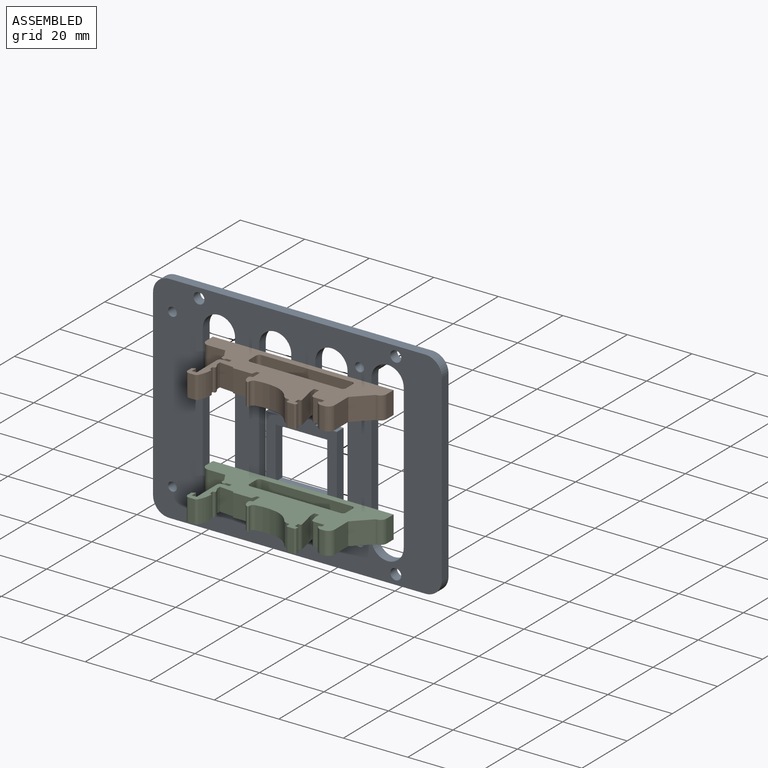
[diagram: assembled view]
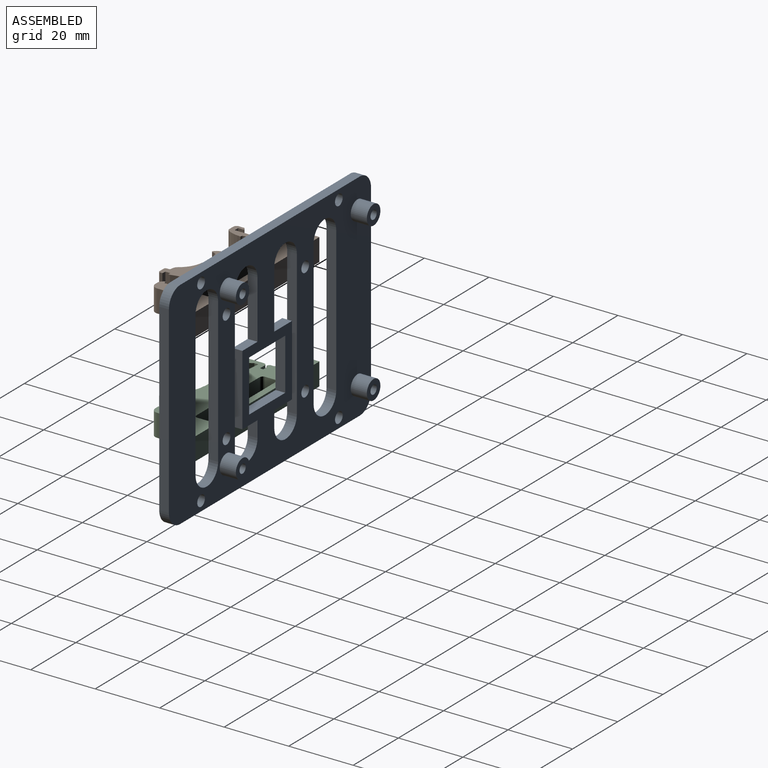
[diagram: assembled view, second angle]
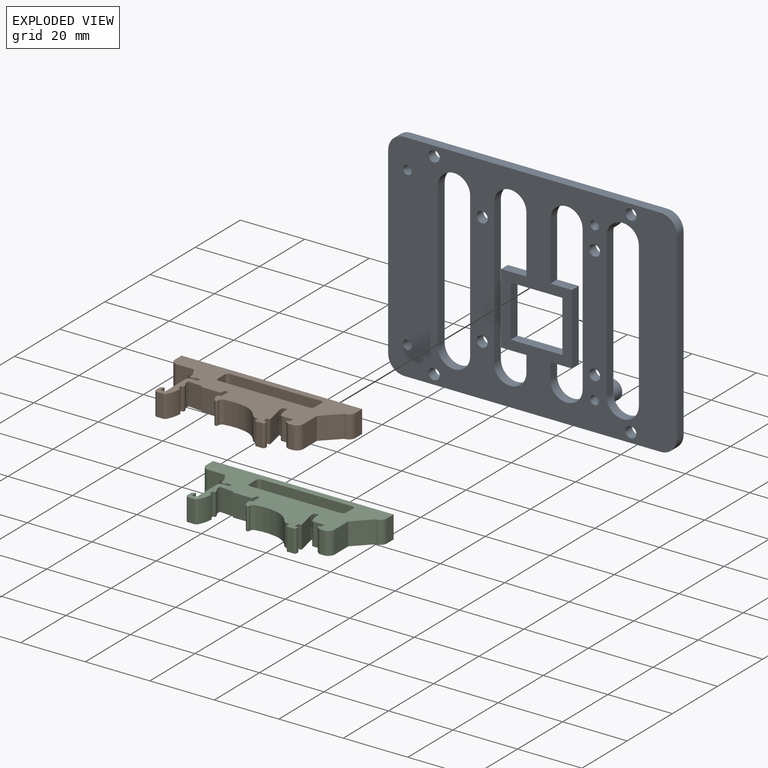
[diagram: exploded view]
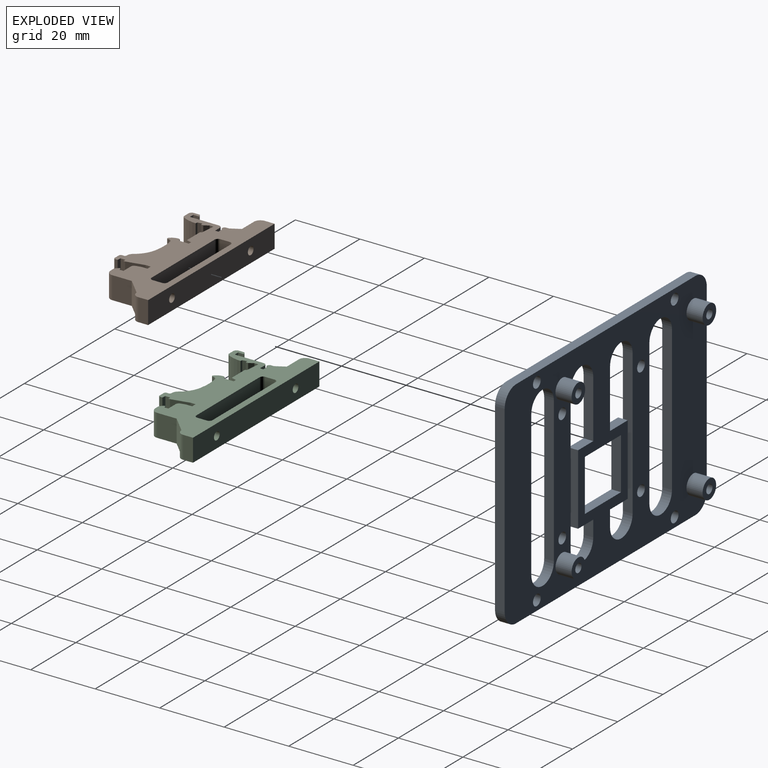
[diagram: exploded view, second angle]
ASSEMBLY  parts=3 mates=2
PART A: 58 faces, bbox 89.5x8x67 mm
  f0: plane 5x3mm, normal (-1,0,0), area 15mm2, adj f4,f5,f16,f51
  f1: plane 5x3mm, normal (1,0,0), area 15mm2, adj f4,f5,f19,f48
  f2: plane 18x3mm, normal (-1,0,0), area 54mm2, adj f4,f5,f17,f50
  f3: plane 18x3mm, normal (1,0,0), area 54mm2, adj f4,f5,f18,f49
  f4: plane 89.5x67mm, normal (0,1,0), area 3739.7mm2, adj f0,f1,f2,f3,f6,f7,f8,f9
  f5: plane 89.5x67mm, normal (0,-1,0), area 3829mm2, adj f0,f1,f2,f3,f6,f7,f8,f9
  f6: cylinder r=5mm len=5mm, axis (0,-1,0), area 23.6mm2, adj f4,f5,f7,f29
  f7: plane 57x3mm, normal (1,0,0), area 171mm2, adj f4,f5,f6,f8
  f8: cylinder r=5mm len=5mm, axis (0,-1,0), area 23.6mm2, adj f4,f5,f7,f9
  f9: plane 79.5x3mm, normal (0,0,-1), area 238.5mm2, adj f4,f5,f8,f10
  f10: cylinder r=5mm len=5mm, axis (0,-1,0), area 23.6mm2, adj f4,f5,f9,f11
  f11: plane 57x3mm, normal (-1,0,0), area 171mm2, adj f4,f5,f10,f12
  f12: cylinder r=5mm len=5mm, axis (0,-1,0), area 23.6mm2, adj f4,f5,f11,f29
  f13: cylinder r=5mm len=10mm, axis (0,-1,0), area 47.1mm2, adj f4,f5,f14,f31
  f14: plane 45x3mm, normal (1,0,0), area 135mm2, adj f4,f5,f13,f15
  f15: cylinder r=5mm len=10mm, axis (0,-1,0), area 47.1mm2, adj f4,f5,f14,f31
  f16: cylinder r=5mm len=10mm, axis (0,-1,0), area 47.1mm2, adj f0,f4,f5,f32
  f17: cylinder r=5mm len=10mm, axis (0,-1,0), area 47.1mm2, adj f2,f4,f5,f32
  f18: cylinder r=5mm len=10mm, axis (0,-1,0), area 47.1mm2, adj f3,f4,f5,f33
  f19: cylinder r=5mm len=10mm, axis (0,-1,0), area 47.1mm2, adj f1,f4,f5,f33
  f20: cylinder r=5mm len=10mm, axis (0,-1,0), area 47.1mm2, adj f4,f5,f21,f34
  f21: plane 45x3mm, normal (-1,0,0), area 135mm2, adj f4,f5,f20,f22
  f22: cylinder r=5mm len=10mm, axis (0,-1,0), area 47.1mm2, adj f4,f5,f21,f34
  f23: cylinder r=1.38mm len=8mm, axis (0,-1,0), area 69.1mm2, adj f5,f43
  f24: cylinder r=1.38mm len=8mm, axis (0,-1,0), area 69.1mm2, adj f5,f39
  f25: cylinder r=1.38mm len=8mm, axis (0,-1,0), area 69.1mm2, adj f5,f41
  f26: cylinder r=1.7mm len=3.4mm, axis (0,-1,0), area 32mm2, adj f4,f5
  f27: cylinder r=1.7mm len=3.4mm, axis (0,-1,0), area 32mm2, adj f4,f5
  f28: cylinder r=1.7mm len=3.4mm, axis (0,-1,0), area 32mm2, adj f4,f5
  f29: plane 79.5x3mm, normal (0,0,1), area 238.5mm2, adj f4,f5,f6,f12
  f30: cylinder r=1.7mm len=3.4mm, axis (0,-1,0), area 32mm2, adj f4,f5
  f31: plane 45x3mm, normal (-1,0,0), area 135mm2, adj f4,f5,f13,f15
  f32: plane 45x3mm, normal (1,0,0), area 135mm2, adj f4,f5,f16,f17
  f33: plane 45x3mm, normal (-1,0,0), area 135mm2, adj f4,f5,f18,f19
  f34: plane 45x3mm, normal (1,0,0), area 135mm2, adj f4,f5,f20,f22
  f35: cylinder r=1.38mm len=8mm, axis (0,-1,0), area 69.1mm2, adj f5,f37
  f36: cylinder r=3mm len=6mm, axis (0,-1,0), area 94.2mm2, adj f4,f37
  f37: plane 6x6mm, normal (0,1,0), area 22.3mm2, adj f35,f36
  f38: cylinder r=3mm len=6mm, axis (0,-1,0), area 94.2mm2, adj f4,f39
  f39: plane 6x6mm, normal (0,1,0), area 22.3mm2, adj f24,f38
  f40: cylinder r=3mm len=6mm, axis (0,-1,0), area 94.2mm2, adj f4,f41
  f41: plane 6x6mm, normal (0,1,0), area 22.3mm2, adj f25,f40
  f42: cylinder r=3mm len=6mm, axis (0,-1,0), area 94.2mm2, adj f4,f43
  f43: plane 6x6mm, normal (0,1,0), area 22.3mm2, adj f23,f42
  f44: plane 16x3mm, normal (0,0,1), area 48mm2, adj f4,f5,f46,f53
  f45: plane 16x3mm, normal (0,0,-1), area 48mm2, adj f4,f5,f46,f53
  f46: plane 16x3mm, normal (-1,0,0), area 48mm2, adj f4,f5,f44,f45
  f47: plane 22x3mm, normal (1,0,0), area 66mm2, adj f4,f5,f48,f49
  f48: plane 6.71x3mm, normal (0,0,-1), area 20.1mm2, adj f1,f4,f5,f47
  f49: plane 6.71x3mm, normal (0,0,1), area 20.1mm2, adj f3,f4,f5,f47
  f50: plane 7.86x3mm, normal (0,0,1), area 23.6mm2, adj f2,f4,f5,f52
  f51: plane 7.86x3mm, normal (0,0,-1), area 23.6mm2, adj f0,f4,f5,f52
  f52: plane 22x3mm, normal (-1,0,0), area 66mm2, adj f4,f5,f50,f51
  f53: plane 16x3mm, normal (1,0,0), area 48mm2, adj f4,f5,f44,f45
  f54: cylinder r=1.7mm len=3.4mm, axis (0,1,0), area 32mm2, adj f4,f5
  f55: cylinder r=1.7mm len=3.4mm, axis (0,1,0), area 32mm2, adj f4,f5
  f56: cylinder r=1.7mm len=3.4mm, axis (0,1,0), area 32mm2, adj f4,f5
  f57: cylinder r=1.7mm len=3.4mm, axis (0,1,0), area 32mm2, adj f4,f5
PART B: 92 faces, bbox 56x21.5x7 mm
  f0: cylinder r=0.75mm len=7mm, axis (0,0,-1), area 13.1mm2, adj f7,f8,f24,f25,f90,f91
  f1: plane 3x2.25mm, normal (-1,0,0), area 6.8mm2, adj f3,f6,f7,f88
  f2: plane 3x2.25mm, normal (-1,0,0), area 6.8mm2, adj f4,f5,f8,f88
  f3: cylinder r=1mm len=2.66mm, axis (0,0,-1), area 3.7mm2, adj f1,f7,f82,f88
  f4: cylinder r=1mm len=2.66mm, axis (0,0,-1), area 3.7mm2, adj f2,f8,f82,f88
  f5: cylinder r=1mm len=2.66mm, axis (0,0,1), area 3.7mm2, adj f2,f8,f80,f88
  f6: cylinder r=1mm len=2.66mm, axis (0,0,1), area 3.7mm2, adj f1,f7,f80,f88
  f7: plane 56x21.5mm, normal (0,0,1), area 573.7mm2, adj f0,f1,f3,f6,f9,f10,f11,f12
  f8: plane 56x21.5mm, normal (0,0,-1), area 573.7mm2, adj f0,f2,f4,f5,f9,f10,f11,f12
  f9: cylinder r=2mm len=7mm, axis (0,0,-1), area 22mm2, adj f7,f8,f76,f77
  f10: cylinder r=2mm len=7mm, axis (0,0,1), area 22mm2, adj f7,f8,f75,f78
  f11: plane 7x1mm, normal (-0.5,0.87,0), area 8.1mm2, adj f7,f8,f19,f72
  f12: plane 7x3.27mm, normal (0,-1,0), area 22.9mm2, adj f7,f8,f13,f14
  f13: cylinder r=1mm len=7mm, axis (0,0,-1), area 9.5mm2, adj f7,f8,f12,f30
  f14: plane 7x1.2mm, normal (-1,0,0), area 8.4mm2, adj f7,f8,f12,f15
  f15: plane 7x0.8mm, normal (-0.24,0.97,0), area 5.8mm2, adj f7,f8,f14,f60
  f16: plane 7x1.36mm, normal (1,0,0), area 9.5mm2, adj f7,f8,f17,f34
  f17: plane 7x1.5mm, normal (0,-1,0), area 10.5mm2, adj f7,f8,f16,f31
  f18: plane 7x1.83mm, normal (0,-1,0), area 12.8mm2, adj f7,f8,f56,f73
  f19: plane 7x1.79mm, normal (-1,0,0), area 12.5mm2, adj f7,f8,f11,f73
  f20: plane 9x7mm, normal (-1,0,0), area 63mm2, adj f7,f8,f21,f71
  f21: cylinder r=1mm len=7mm, axis (0,0,-1), area 11mm2, adj f7,f8,f20,f22
  f22: plane 7x2.11mm, normal (0,1,0), area 14.8mm2, adj f7,f8,f21,f23
  f23: plane 7x1.05mm, normal (-1,0,0), area 7.4mm2, adj f7,f8,f22,f24
  f24: plane 7x1.66mm, normal (0,-1,0), area 8.7mm2, adj f0,f7,f8,f23,f91
  f25: plane 7x0.88mm, normal (-1,0,0), area 6.1mm2, adj f0,f7,f8,f28
  f26: plane 7x0.97mm, normal (0,-1,0), area 6.8mm2, adj f7,f8,f27,f33
  f27: cylinder r=1.5mm len=7mm, axis (0,0,-1), area 8.2mm2, adj f7,f8,f26,f59
  f28: plane 7x2.82mm, normal (-0.87,-0.5,0), area 22.8mm2, adj f7,f8,f25,f78
  f29: cylinder r=2mm len=7mm, axis (0,0,-1), area 3.1mm2, adj f7,f8,f30,f31
  f30: plane 7x1.37mm, normal (-0.98,-0.22,0), area 9.8mm2, adj f7,f8,f13,f29
  f31: plane 7x1.61mm, normal (-1,0,0), area 11.3mm2, adj f7,f8,f17,f29
  f32: plane 7x6mm, normal (1,0,0), area 42mm2, adj f7,f8,f33,f79
  f33: cylinder r=2mm len=7mm, axis (0,0,-1), area 22mm2, adj f7,f8,f26,f32
  f34: cylinder r=2mm len=7mm, axis (0,0,-1), area 3.1mm2, adj f7,f8,f16,f35
  f35: plane 7x5.31mm, normal (0.98,0.22,0), area 38.1mm2, adj f7,f8,f34,f48
  f36: cylinder r=3.35mm len=7mm, axis (0,0,-1), area 18.9mm2, adj f7,f8,f37,f38
  f37: cylinder r=0.4mm len=7mm, axis (0,0,-1), area 6.8mm2, adj f7,f8,f36,f63
  f38: cylinder r=0.7mm len=7mm, axis (0,0,-1), area 7.9mm2, adj f7,f8,f36,f55
  f39: plane 7x0.59mm, normal (0.19,0.98,0), area 4.2mm2, adj f7,f8,f40,f50
  f40: cylinder r=9.5mm len=7mm, axis (0,0,-1), area 31.8mm2, adj f7,f8,f39,f56
  f41: plane 7x0.5mm, normal (-0.87,-0.5,0), area 4mm2, adj f7,f8,f42,f43
  f42: plane 7x5.8mm, normal (0,-1,0), area 40.6mm2, adj f7,f8,f41,f70
  f43: plane 7x4.41mm, normal (-0.09,-1,0), area 31mm2, adj f7,f8,f41,f52
  f44: cylinder r=8mm len=7mm, axis (0,0,-1), area 42.4mm2, adj f7,f8,f45,f46
  f45: cylinder r=2mm len=7mm, axis (0,0,-1), area 13.6mm2, adj f7,f8,f44,f64
  f46: cylinder r=16.2mm len=7mm, axis (0,0,-1), area 45.6mm2, adj f7,f8,f44,f63
  f47: plane 7x0.85mm, normal (0,-1,0), area 6mm2, adj f7,f8,f48,f49
  f48: plane 7x0.5mm, normal (1,0,0), area 3.5mm2, adj f7,f8,f35,f47
  f49: plane 7x1.5mm, normal (1,0,0), area 10.5mm2, adj f7,f8,f47,f58
  f50: plane 7x1.36mm, normal (0.98,0.17,0), area 9.7mm2, adj f7,f8,f39,f54
  f51: plane 7x1.39mm, normal (0.87,0.5,0), area 11.2mm2, adj f7,f8,f52,f53
  f52: plane 7x1.21mm, normal (1,0,0), area 8.5mm2, adj f7,f8,f43,f51
  f53: plane 7x0.7mm, normal (1,0,0), area 4.9mm2, adj f7,f8,f51,f54
  f54: plane 7x0.73mm, normal (0.17,-0.98,0), area 5.2mm2, adj f7,f8,f50,f53
  f55: cylinder r=0.3mm len=7mm, axis (0,0,-1), area 3.3mm2, adj f7,f8,f38,f69
  f56: cylinder r=1mm len=7mm, axis (0,0,-1), area 7.6mm2, adj f7,f8,f18,f40
  f57: plane 7x1mm, normal (0,-1,0), area 7mm2, adj f7,f8,f69,f70
  f58: plane 7x1.15mm, normal (0.11,0.99,0), area 8.1mm2, adj f7,f8,f49,f61
  f59: plane 7x0.51mm, normal (-0.71,-0.71,0), area 5.1mm2, adj f7,f8,f27,f60
  f60: plane 7x0.45mm, normal (-1,0,0), area 3.2mm2, adj f7,f8,f15,f59
  f61: plane 7x0.78mm, normal (1,0,0), area 5.4mm2, adj f7,f8,f58,f62
  f62: cylinder r=0.5mm len=7mm, axis (0,0,-1), area 5.5mm2, adj f7,f8,f61,f67
  f63: cylinder r=1.2mm len=7mm, axis (0,0,-1), area 12.6mm2, adj f7,f8,f37,f46
  f64: plane 7x0.14mm, normal (0,-1,0), area 1mm2, adj f7,f8,f45,f65
  f65: cylinder r=0.5mm len=7mm, axis (0,0,-1), area 5.5mm2, adj f7,f8,f64,f68
  f66: cylinder r=0.5mm len=7mm, axis (0,0,-1), area 5.5mm2, adj f7,f8,f67,f68
  f67: plane 7x1.95mm, normal (0,-1,0), area 13.7mm2, adj f7,f8,f62,f66
  f68: plane 7x0.65mm, normal (-1,0,0), area 4.5mm2, adj f7,f8,f65,f66
  f69: plane 7x2.85mm, normal (-1,0,0), area 19.9mm2, adj f7,f8,f55,f57
  f70: plane 7x1.6mm, normal (0.97,-0.26,0), area 11.6mm2, adj f7,f8,f42,f57
  f71: plane 7x1.5mm, normal (0,1,0), area 10.5mm2, adj f7,f8,f20,f72
  f72: plane 7x1.87mm, normal (1,0,0), area 13.1mm2, adj f7,f8,f11,f71
  f73: cylinder r=1mm len=7mm, axis (0,0,1), area 11mm2, adj f7,f8,f18,f19
  f74: plane 56x7mm, normal (0,1,0), area 382.2mm2, adj f7,f8,f75,f77,f88,f91
  f75: plane 7x3mm, normal (-1,0,0), area 21mm2, adj f7,f8,f10,f74
  f76: plane 7x0.04mm, normal (0,-1,0), area 0.3mm2, adj f7,f8,f9,f79
  f77: plane 7x3mm, normal (1,0,0), area 21mm2, adj f7,f8,f9,f74
  f78: plane 7x5.31mm, normal (0,-1,0), area 37.2mm2, adj f7,f8,f10,f28
  f79: plane 7x5mm, normal (0.71,-0.71,0), area 49.5mm2, adj f7,f8,f32,f76
  f80: plane 28x7mm, normal (0,1,0), area 195.6mm2, adj f5,f6,f7,f8,f86,f88
  f81: plane 7x3mm, normal (1,0,0), area 19.7mm2, adj f7,f8,f83,f84,f85,f86,f87
  f82: plane 28x7mm, normal (0,-1,0), area 195.6mm2, adj f3,f4,f7,f8,f87,f88
  f83: plane 2.75x1.66mm, normal (0,1,0), area 3.8mm2, adj f81,f84
  f84: cylinder r=1.38mm len=2.75mm, axis (0,-1,0), area 2.4mm2, adj f81,f83,f85
  f85: plane 2.75x1.66mm, normal (0,-1,0), area 3.8mm2, adj f81,f84
  f86: cylinder r=1mm len=7mm, axis (0,0,-1), area 11mm2, adj f7,f8,f80,f81
  f87: cylinder r=1mm len=7mm, axis (0,0,1), area 11mm2, adj f7,f8,f81,f82
  f88: cylinder r=1.25mm len=9.2mm, axis (0,1,0), area 52.8mm2, adj f1,f2,f3,f4,f5,f6,f74,f80
  f89: cone r=0mm half-angle=59deg, axis (0,1,0), area 5.7mm2, adj f88
  f90: cone r=0mm half-angle=59deg, axis (0,1,0), area 1.1mm2, adj f0,f91
  f91: cylinder r=1.25mm len=9.2mm, axis (0,1,0), area 71.2mm2, adj f0,f24,f74,f90
PART C: same geometry as B
PLACE A at identity
PLACE B t=(28.79,-15.2,10.93)mm
PLACE C t=(28.79,-15.2,-23.93)mm
MATE fastened B.f89 <-> A.f54  axis (0,1,0) through (29,0,17.43)mm
MATE fastened C.f90 <-> A.f55  axis (0,1,0) through (-5.86,0,-17.43)mm
